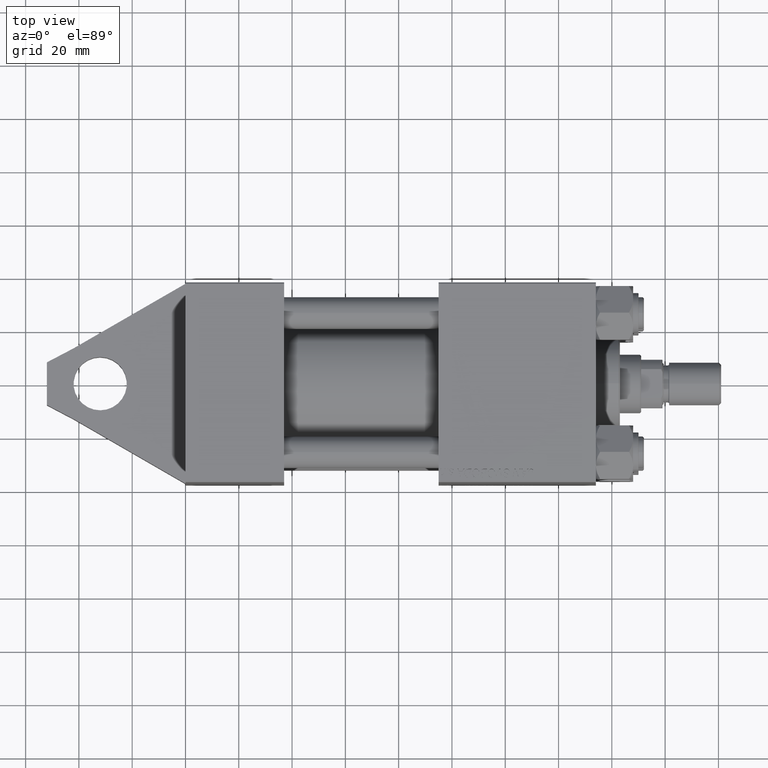
[diagram: clean part render]
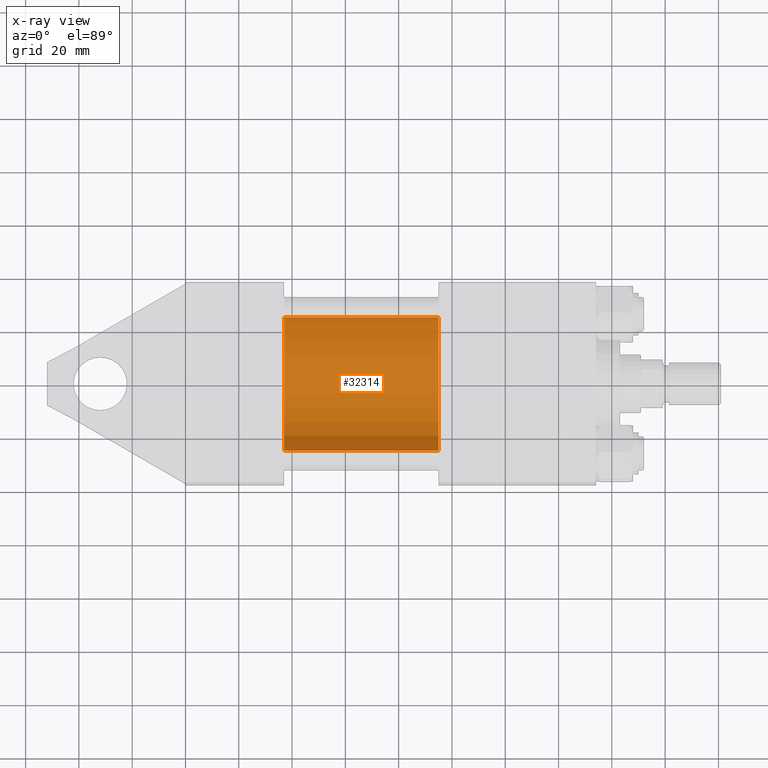
[diagram: x-ray — body ghosted, one internal face saturated and labeled with its STEP entity id]
A machine part, top view, then the same camera in x-ray: the body is ghosted and one INTERNAL B-rep face — a face not visible from any outside direction — is saturated and labeled: STEP entity #32314.
In plain terms, the highlighted cylindrical surface (partial cylindrical patch) has radius 25 mm, axis along (-1, -0, 0).
Its self-contained STEP definition (entity closure, byte-faithful):
#59 = EDGE_LOOP ( 'NONE', ( #24053, #18729, #15995, #7402 ) ) ;
#694 = DIRECTION ( 'NONE',  ( -1.000000000000000000, -0.000000000000000000, -0.000000000000000000 ) ) ;
#1122 = DIRECTION ( 'NONE',  ( -1.000000000000000000, -0.000000000000000000, -0.000000000000000000 ) ) ;
#4009 = CARTESIAN_POINT ( 'NONE',  ( 95.00000000000000000, -2.602085213965210642E-15, 0.000000000000000000 ) ) ;
#4283 = VERTEX_POINT ( 'NONE', #42239 ) ;
#6317 = EDGE_CURVE ( 'NONE', #29246, #26146, #28954, .T. ) ;
#6433 = CARTESIAN_POINT ( 'NONE',  ( 37.00000000000000000, -2.602085213965210642E-15, 0.000000000000000000 ) ) ;
#7205 = VECTOR ( 'NONE', #1122, 1000.000000000000000 ) ;
#7402 = ORIENTED_EDGE ( 'NONE', *, *, #7577, .F. ) ;
#7577 = EDGE_CURVE ( 'NONE', #29246, #4283, #33327, .T. ) ;
#7967 = CARTESIAN_POINT ( 'NONE',  ( 37.00000000000000000, 4.595317839031718093E-16, -25.00000000000000000 ) ) ;
#8218 = CARTESIAN_POINT ( 'NONE',  ( 95.00000000000000000, 4.595317839031718093E-16, -25.00000000000000000 ) ) ;
#10802 = CARTESIAN_POINT ( 'NONE',  ( 95.00000000000000000, 4.595317839031718093E-16, -25.00000000000000000 ) ) ;
#11889 = CIRCLE ( 'NONE', #32171, 25.00000000000000000 ) ;
#14570 = LINE ( 'NONE', #8218, #32300 ) ;
#15995 = ORIENTED_EDGE ( 'NONE', *, *, #20550, .F. ) ;
#16645 = AXIS2_PLACEMENT_3D ( 'NONE', #21133, #39680, #46031 ) ;
#17238 = DIRECTION ( 'NONE',  ( 0.000000000000000000, 0.000000000000000000, -1.000000000000000000 ) ) ;
#18389 = CARTESIAN_POINT ( 'NONE',  ( 95.00000000000000000, -2.602085213965210642E-15, 25.00000000000000000 ) ) ;
#18729 = ORIENTED_EDGE ( 'NONE', *, *, #28348, .T. ) ;
#20550 = EDGE_CURVE ( 'NONE', #4283, #35966, #11889, .T. ) ;
#21133 = CARTESIAN_POINT ( 'NONE',  ( 95.00000000000000000, -2.602085213965210642E-15, 0.000000000000000000 ) ) ;
#24053 = ORIENTED_EDGE ( 'NONE', *, *, #6317, .T. ) ;
#25235 = DIRECTION ( 'NONE',  ( 1.000000000000000000, 0.000000000000000000, 0.000000000000000000 ) ) ;
#25348 = CYLINDRICAL_SURFACE ( 'NONE', #16645, 25.00000000000000000 ) ;
#26146 = VERTEX_POINT ( 'NONE', #10802 ) ;
#28348 = EDGE_CURVE ( 'NONE', #26146, #35966, #14570, .T. ) ;
#28954 = CIRCLE ( 'NONE', #31939, 25.00000000000000000 ) ;
#29168 = DIRECTION ( 'NONE',  ( 0.000000000000000000, 0.000000000000000000, -1.000000000000000000 ) ) ;
#29246 = VERTEX_POINT ( 'NONE', #18389 ) ;
#31697 = FACE_OUTER_BOUND ( 'NONE', #59, .T. ) ;
#31939 = AXIS2_PLACEMENT_3D ( 'NONE', #4009, #43736, #29168 ) ;
#32171 = AXIS2_PLACEMENT_3D ( 'NONE', #6433, #25235, #17238 ) ;
#32300 = VECTOR ( 'NONE', #694, 1000.000000000000000 ) ;
#32314 = ADVANCED_FACE ( 'NONE', ( #31697 ), #25348, .F. ) ;
#33327 = LINE ( 'NONE', #36389, #7205 ) ;
#35966 = VERTEX_POINT ( 'NONE', #7967 ) ;
#36389 = CARTESIAN_POINT ( 'NONE',  ( 95.00000000000000000, -2.602085213965210642E-15, 25.00000000000000000 ) ) ;
#39680 = DIRECTION ( 'NONE',  ( -1.000000000000000000, -0.000000000000000000, -0.000000000000000000 ) ) ;
#42239 = CARTESIAN_POINT ( 'NONE',  ( 37.00000000000000000, -2.602085213965210642E-15, 25.00000000000000000 ) ) ;
#43736 = DIRECTION ( 'NONE',  ( 1.000000000000000000, 0.000000000000000000, 0.000000000000000000 ) ) ;
#46031 = DIRECTION ( 'NONE',  ( 0.000000000000000000, 0.000000000000000000, 1.000000000000000000 ) ) ;